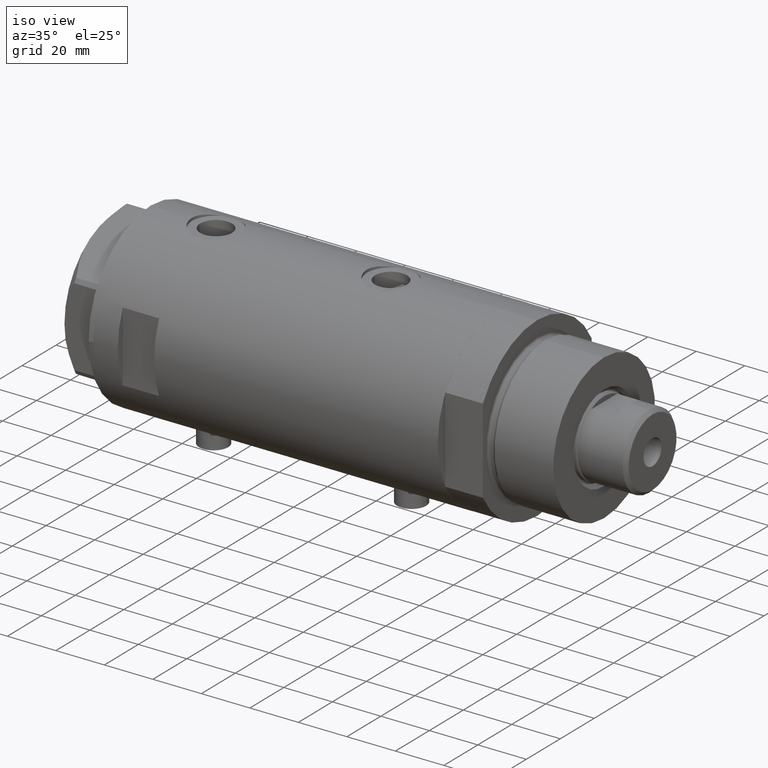
[diagram: clean part render]
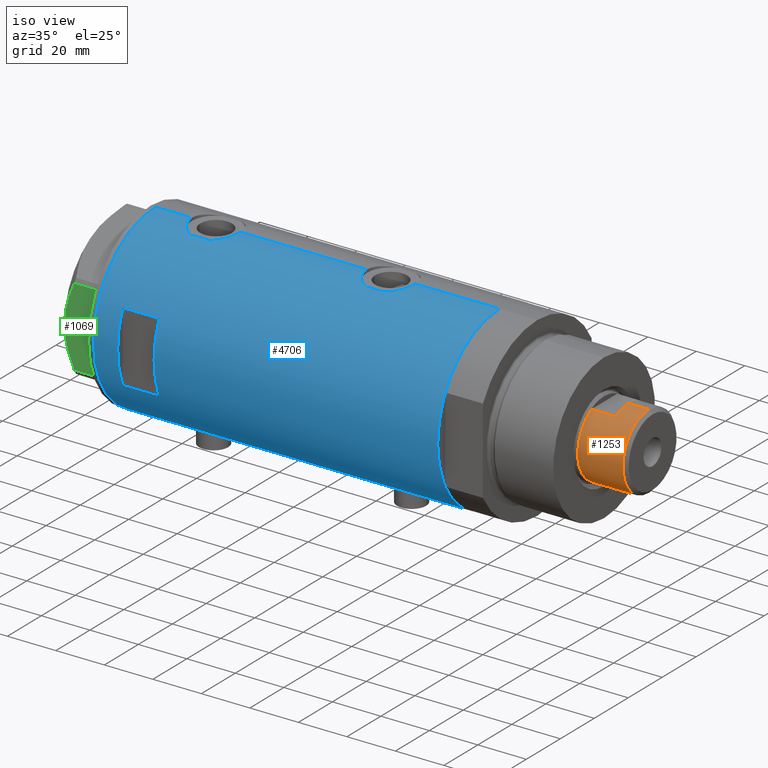
[diagram: same view with three faces highlighted in distinct colors, each labeled with its STEP entity id]
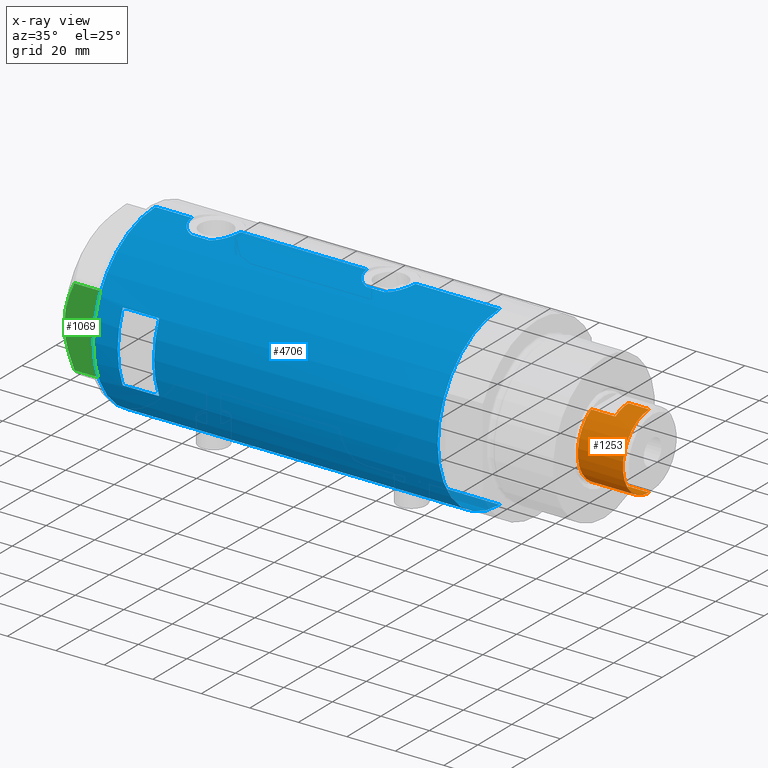
[diagram: x-ray of the same camera — body ghosted, the three highlighted faces saturated]
A machine part, iso view with three faces highlighted in distinct colors.
The next image is the same camera in x-ray (body ghosted, the three faces saturated) — at least one of them is partly hidden behind the body in this view.
Their STEP definitions:

[orange] entity #1253 — the highlighted cylindrical surface (partial cylindrical patch) has radius 15.5 mm, axis along (-1, -0, 0).
#62 = DIRECTION ( 'NONE',  ( 1.000000000000000000, 0.000000000000000000, 0.000000000000000000 ) ) ;
#89 = DIRECTION ( 'NONE',  ( 0.000000000000000000, 0.000000000000000000, 1.000000000000000000 ) ) ;
#96 = EDGE_CURVE ( 'NONE', #2573, #730, #236, .T. ) ;
#131 = ORIENTED_EDGE ( 'NONE', *, *, #330, .F. ) ;
#148 = FACE_OUTER_BOUND ( 'NONE', #2046, .T. ) ;
#227 = CARTESIAN_POINT ( 'NONE',  ( -13.48630416385452691, -7.640000000000001457, 169.0200000000000102 ) ) ;
#236 = LINE ( 'NONE', #801, #3142 ) ;
#330 = EDGE_CURVE ( 'NONE', #1028, #2474, #2692, .T. ) ;
#418 = DIRECTION ( 'NONE',  ( -0.000000000000000000, -0.000000000000000000, -1.000000000000000000 ) ) ;
#443 = EDGE_CURVE ( 'NONE', #4495, #3495, #2192, .T. ) ;
#484 = DIRECTION ( 'NONE',  ( 0.000000000000000000, 0.000000000000000000, 1.000000000000000000 ) ) ;
#534 = CARTESIAN_POINT ( 'NONE',  ( 0.000000000000000000, 0.000000000000000000, 159.0199999999999818 ) ) ;
#579 = CYLINDRICAL_SURFACE ( 'NONE', #4241, 15.49999999999999822 ) ;
#674 = VECTOR ( 'NONE', #3893, 1000.000000000000000 ) ;
#679 = AXIS2_PLACEMENT_3D ( 'NONE', #4507, #89, #1199 ) ;
#730 = VERTEX_POINT ( 'NONE', #2981 ) ;
#801 = CARTESIAN_POINT ( 'NONE',  ( -15.49999999999999822, 0.000000000000000000, 169.0200000000000102 ) ) ;
#835 = CIRCLE ( 'NONE', #3850, 15.49999999999999822 ) ;
#1028 = VERTEX_POINT ( 'NONE', #2110 ) ;
#1043 = DIRECTION ( 'NONE',  ( 0.000000000000000000, 0.000000000000000000, 1.000000000000000000 ) ) ;
#1172 = CARTESIAN_POINT ( 'NONE',  ( 15.50000000000000178, 1.898202538678397557E-15, 169.0200000000000102 ) ) ;
#1199 = DIRECTION ( 'NONE',  ( 1.000000000000000000, 0.000000000000000000, 0.000000000000000000 ) ) ;
#1206 = AXIS2_PLACEMENT_3D ( 'NONE', #534, #484, #3408 ) ;
#1253 = ADVANCED_FACE ( 'NONE', ( #148 ), #579, .T. ) ;
#1317 = CARTESIAN_POINT ( 'NONE',  ( 15.49999999999999822, 1.898202538678397163E-15, 177.6200000000000045 ) ) ;
#1359 = VERTEX_POINT ( 'NONE', #2856 ) ;
#1430 = CARTESIAN_POINT ( 'NONE',  ( 0.000000000000000000, 0.000000000000000000, 169.0200000000000102 ) ) ;
#1613 = ORIENTED_EDGE ( 'NONE', *, *, #2211, .T. ) ;
#1701 = CARTESIAN_POINT ( 'NONE',  ( 15.49999999999999822, 1.898202538678397163E-15, 169.0200000000000102 ) ) ;
#1960 = CARTESIAN_POINT ( 'NONE',  ( 13.48630416385453046, -7.639999999999995239, 169.0200000000000102 ) ) ;
#2032 = DIRECTION ( 'NONE',  ( -0.000000000000000000, -0.000000000000000000, -1.000000000000000000 ) ) ;
#2046 = EDGE_LOOP ( 'NONE', ( #3263, #2893, #2382, #4098, #4716, #4320, #131, #1613 ) ) ;
#2110 = CARTESIAN_POINT ( 'NONE',  ( 13.48630416385453046, -7.639999999999995239, 169.0200000000000102 ) ) ;
#2192 = LINE ( 'NONE', #1701, #674 ) ;
#2211 = EDGE_CURVE ( 'NONE', #1028, #3495, #4087, .T. ) ;
#2257 = DIRECTION ( 'NONE',  ( 0.000000000000000000, 0.000000000000000000, -1.000000000000000000 ) ) ;
#2320 = CARTESIAN_POINT ( 'NONE',  ( 13.48630416385452868, -7.639999999999997904, 159.0199999999999818 ) ) ;
#2358 = CARTESIAN_POINT ( 'NONE',  ( -13.48630416385452335, -7.640000000000004121, 159.0199999999999818 ) ) ;
#2361 = DIRECTION ( 'NONE',  ( -1.000000000000000000, 0.000000000000000000, 0.000000000000000000 ) ) ;
#2382 = ORIENTED_EDGE ( 'NONE', *, *, #96, .T. ) ;
#2464 = CARTESIAN_POINT ( 'NONE',  ( -15.49999999999999822, 0.000000000000000000, 177.6200000000000045 ) ) ;
#2474 = VERTEX_POINT ( 'NONE', #2320 ) ;
#2573 = VERTEX_POINT ( 'NONE', #2464 ) ;
#2626 = CARTESIAN_POINT ( 'NONE',  ( 0.000000000000000000, 0.000000000000000000, 177.6200000000000045 ) ) ;
#2672 = CIRCLE ( 'NONE', #1206, 15.49999999999999822 ) ;
#2692 = LINE ( 'NONE', #1960, #3607 ) ;
#2781 = CARTESIAN_POINT ( 'NONE',  ( 0.000000000000000000, 0.000000000000000000, 169.0200000000000102 ) ) ;
#2856 = CARTESIAN_POINT ( 'NONE',  ( -13.48630416385452335, -7.640000000000004121, 169.0200000000000102 ) ) ;
#2893 = ORIENTED_EDGE ( 'NONE', *, *, #2987, .T. ) ;
#2905 = DIRECTION ( 'NONE',  ( 1.000000000000000000, 0.000000000000000000, 0.000000000000000000 ) ) ;
#2981 = CARTESIAN_POINT ( 'NONE',  ( -15.50000000000000178, 0.000000000000000000, 169.0200000000000102 ) ) ;
#2987 = EDGE_CURVE ( 'NONE', #4495, #2573, #835, .T. ) ;
#3018 = EDGE_CURVE ( 'NONE', #730, #1359, #3684, .T. ) ;
#3142 = VECTOR ( 'NONE', #418, 1000.000000000000000 ) ;
#3263 = ORIENTED_EDGE ( 'NONE', *, *, #443, .F. ) ;
#3408 = DIRECTION ( 'NONE',  ( 1.000000000000000000, 0.000000000000000000, 0.000000000000000000 ) ) ;
#3433 = DIRECTION ( 'NONE',  ( -0.000000000000000000, -0.000000000000000000, -1.000000000000000000 ) ) ;
#3495 = VERTEX_POINT ( 'NONE', #1172 ) ;
#3573 = EDGE_CURVE ( 'NONE', #1359, #3885, #4650, .T. ) ;
#3607 = VECTOR ( 'NONE', #3433, 1000.000000000000000 ) ;
#3684 = CIRCLE ( 'NONE', #679, 15.50000000000000000 ) ;
#3850 = AXIS2_PLACEMENT_3D ( 'NONE', #2626, #2257, #62 ) ;
#3885 = VERTEX_POINT ( 'NONE', #2358 ) ;
#3893 = DIRECTION ( 'NONE',  ( -0.000000000000000000, -0.000000000000000000, -1.000000000000000000 ) ) ;
#4087 = CIRCLE ( 'NONE', #4712, 15.50000000000000000 ) ;
#4098 = ORIENTED_EDGE ( 'NONE', *, *, #3018, .T. ) ;
#4153 = VECTOR ( 'NONE', #2032, 1000.000000000000000 ) ;
#4241 = AXIS2_PLACEMENT_3D ( 'NONE', #2781, #4549, #2361 ) ;
#4320 = ORIENTED_EDGE ( 'NONE', *, *, #4483, .T. ) ;
#4483 = EDGE_CURVE ( 'NONE', #3885, #2474, #2672, .T. ) ;
#4495 = VERTEX_POINT ( 'NONE', #1317 ) ;
#4507 = CARTESIAN_POINT ( 'NONE',  ( 0.000000000000000000, 0.000000000000000000, 169.0200000000000102 ) ) ;
#4549 = DIRECTION ( 'NONE',  ( -0.000000000000000000, -0.000000000000000000, -1.000000000000000000 ) ) ;
#4650 = LINE ( 'NONE', #227, #4153 ) ;
#4712 = AXIS2_PLACEMENT_3D ( 'NONE', #1430, #1043, #2905 ) ;
#4716 = ORIENTED_EDGE ( 'NONE', *, *, #3573, .T. ) ;

[blue] entity #4706 — the highlighted cylindrical surface (partial cylindrical patch) has radius 36.5 mm, axis along (-1, -0, 0).
#4 = LINE ( 'NONE', #3319, #3517 ) ;
#40 = VERTEX_POINT ( 'NONE', #2114 ) ;
#65 = EDGE_CURVE ( 'NONE', #2851, #4598, #1113, .T. ) ;
#95 = DIRECTION ( 'NONE',  ( 1.000000000000000000, 0.000000000000000000, 0.000000000000000000 ) ) ;
#120 = EDGE_CURVE ( 'NONE', #3703, #892, #2663, .T. ) ;
#123 = CARTESIAN_POINT ( 'NONE',  ( 36.50000000000000000, -0.5031001875915698252, 35.97499999999998721 ) ) ;
#143 = VECTOR ( 'NONE', #3879, 1000.000000000000000 ) ;
#149 = CARTESIAN_POINT ( 'NONE',  ( 36.12792682573228120, -5.214735277442337669, 37.42806882011300473 ) ) ;
#169 = CARTESIAN_POINT ( 'NONE',  ( -36.35061318816141096, -3.303361544904983571, 41.66535958056980604 ) ) ;
#222 = CARTESIAN_POINT ( 'NONE',  ( -35.99659093586380010, -6.041447834568794306, 48.58922412014823777 ) ) ;
#255 = CARTESIAN_POINT ( 'NONE',  ( -35.96087392089862078, -6.250243747806516481, -34.26582509223818818 ) ) ;
#266 = CARTESIAN_POINT ( 'NONE',  ( -36.06543684817881257, -5.617774235967365470, 49.74454447971701399 ) ) ;
#271 = EDGE_CURVE ( 'NONE', #959, #812, #3155, .T. ) ;
#303 = VECTOR ( 'NONE', #2077, 1000.000000000000000 ) ;
#306 = CARTESIAN_POINT ( 'NONE',  ( -36.47262891311154220, -1.427622242603850955, -28.58675370788299475 ) ) ;
#313 = ORIENTED_EDGE ( 'NONE', *, *, #1690, .F. ) ;
#317 = CARTESIAN_POINT ( 'NONE',  ( -36.16125812922425098, -4.962923794285014623, 50.77946085910760843 ) ) ;
#326 = CARTESIAN_POINT ( 'NONE',  ( -36.35061318816141096, -3.303361544904982239, -39.98464041943017833 ) ) ;
#339 = DIRECTION ( 'NONE',  ( 0.000000000000000000, 0.000000000000000000, 1.000000000000000000 ) ) ;
#441 = DIRECTION ( 'NONE',  ( 0.000000000000000000, 0.000000000000000000, 1.000000000000000000 ) ) ;
#486 = CARTESIAN_POINT ( 'NONE',  ( 36.41856252531823657, -2.482507212621167358, 36.27543487153494084 ) ) ;
#504 = CARTESIAN_POINT ( 'NONE',  ( -36.26692673949091272, -4.128477002029510956, 42.26500012567834830 ) ) ;
#533 = B_SPLINE_CURVE_WITH_KNOTS ( 'NONE', 3,
 ( #3030, #4500, #1192, #4133, #2730, #3121, #1241, #1286, #891, #149, #3846, #3889, #537, #486, #2008, #3869, #123, #1594 ),
 .UNSPECIFIED., .F., .F.,
 ( 4, 2, 2, 2, 2, 2, 2, 2, 4 ),
 ( -0.01189883390545606184, -0.008924125429092075873, -0.008180448310001064635, -0.007436771190910053397, -0.005949416952728041330, -0.004462062714546030130, -0.002974708476364018930, -0.001487354238182008598, 0.000000000000000000 ),
 .UNSPECIFIED. ) ;
#536 = CARTESIAN_POINT ( 'NONE',  ( -36.40915499150419521, -2.580495338846552134, 41.27894986644522390 ) ) ;
#537 = CARTESIAN_POINT ( 'NONE',  ( 36.34184199234172041, -3.427106516421254412, 36.56759086319966201 ) ) ;
#554 = VERTEX_POINT ( 'NONE', #4033 ) ;
#557 = CARTESIAN_POINT ( 'NONE',  ( -36.30176144752229561, -3.814344296723639172, 42.00698298049744039 ) ) ;
#559 = VERTEX_POINT ( 'NONE', #4699 ) ;
#577 = CARTESIAN_POINT ( 'NONE',  ( 36.44881677724180236, -1.995085670027225255, -35.98680345369464106 ) ) ;
#604 = CARTESIAN_POINT ( 'NONE',  ( 36.12792682573229541, -5.214735277442338557, -34.72193117988700806 ) ) ;
#607 = CARTESIAN_POINT ( 'NONE',  ( -36.43335814606994205, -2.212659578761315693, 52.82376399169508829 ) ) ;
#619 = CARTESIAN_POINT ( 'NONE',  ( -36.50000000000000000, 4.469960816887838430E-15, -70.97499999999999432 ) ) ;
#621 = CARTESIAN_POINT ( 'NONE',  ( -35.98855750525640218, -6.088954600884529889, -36.09930226150164145 ) ) ;
#643 = CARTESIAN_POINT ( 'NONE',  ( -36.19599073318029525, -4.702920041824404151, -30.55346168323421097 ) ) ;
#663 = CARTESIAN_POINT ( 'NONE',  ( -36.30107494031871340, -3.820993528321237065, -29.71193846463692978 ) ) ;
#678 = CARTESIAN_POINT ( 'NONE',  ( 35.93373217836898448, -6.415110096330612244, -18.48795733644907102 ) ) ;
#689 = CARTESIAN_POINT ( 'NONE',  ( -36.09582946723050867, -5.421573071064194949, -37.81108278370489018 ) ) ;
#700 = CARTESIAN_POINT ( 'NONE',  ( 35.79638309643552674, -7.141827709208428132, 52.99201926969546861 ) ) ;
#701 = LINE ( 'NONE', #3341, #828 ) ;
#708 = CARTESIAN_POINT ( 'NONE',  ( -36.50000000000000000, -1.177086652845314172E-16, -28.42499999999999716 ) ) ;
#724 = CARTESIAN_POINT ( 'NONE',  ( 35.29999999999999716, -9.282241108697837362, 42.25478495245234711 ) ) ;
#744 = CARTESIAN_POINT ( 'NONE',  ( 36.18674680775578167, -4.776679548204624481, -17.38607683068752152 ) ) ;
#751 = CIRCLE ( 'NONE', #3451, 36.50000000000000000 ) ;
#758 = AXIS2_PLACEMENT_3D ( 'NONE', #1933, #3405, #95 ) ;
#788 = ORIENTED_EDGE ( 'NONE', *, *, #2329, .F. ) ;
#812 = VERTEX_POINT ( 'NONE', #1151 ) ;
#828 = VECTOR ( 'NONE', #339, 1000.000000000000000 ) ;
#865 = CARTESIAN_POINT ( 'NONE',  ( -36.46614432713121801, -1.622933015999965756, 40.92533402613152305 ) ) ;
#890 = CARTESIAN_POINT ( 'NONE',  ( -36.44621655743048905, -2.016281777336083270, 41.04517023300883949 ) ) ;
#891 = CARTESIAN_POINT ( 'NONE',  ( 36.00068527486602221, -6.030855700422095289, 37.98298672872645199 ) ) ;
#892 = VERTEX_POINT ( 'NONE', #897 ) ;
#897 = CARTESIAN_POINT ( 'NONE',  ( -36.50000000000000000, 4.469960816887838430E-15, 70.97499999999999432 ) ) ;
#917 = CARTESIAN_POINT ( 'NONE',  ( 35.79656810172927806, -7.133411935499478496, -33.18754878557678722 ) ) ;
#942 = CARTESIAN_POINT ( 'NONE',  ( -35.98855750525640929, -6.088954600884532553, 45.55069773849835002 ) ) ;
#946 = CARTESIAN_POINT ( 'NONE',  ( 36.50000000000000000, 0.000000000000000000, -36.17499999999999716 ) ) ;
#949 = LINE ( 'NONE', #2417, #2765 ) ;
#959 = VERTEX_POINT ( 'NONE', #2345 ) ;
#976 = EDGE_CURVE ( 'NONE', #1563, #3116, #949, .T. ) ;
#992 = CARTESIAN_POINT ( 'NONE',  ( -36.50000000000000000, 3.533701851025436616E-16, 53.22499999999999432 ) ) ;
#1004 = CARTESIAN_POINT ( 'NONE',  ( -36.16125812922425098, -4.962923794285026169, -30.87053914089240436 ) ) ;
#1013 = CARTESIAN_POINT ( 'NONE',  ( 36.00068527486600800, -6.030855700422092625, -34.16701327127353949 ) ) ;
#1025 = CARTESIAN_POINT ( 'NONE',  ( -36.49315367594274306, -0.8144497809045454506, -40.88539785554750949 ) ) ;
#1046 = CARTESIAN_POINT ( 'NONE',  ( -36.02823773219769521, -5.849994928883553769, -36.88455101485643439 ) ) ;
#1089 = CARTESIAN_POINT ( 'NONE',  ( 35.29999999999999716, -9.282241108697837362, 49.69521504754764152 ) ) ;
#1111 = CARTESIAN_POINT ( 'NONE',  ( 36.21540437201188922, -4.554727782332257391, 54.88097629088627372 ) ) ;
#1112 = CARTESIAN_POINT ( 'NONE',  ( 36.44931971524466263, -1.985988150549292452, -16.36133139468235242 ) ) ;
#1113 = B_SPLINE_CURVE_WITH_KNOTS ( 'NONE', 3,
 ( #4290, #2498, #1025, #4000, #1705, #1395, #2445, #4023, #326, #1749, #2093, #2839, #2909, #689, #4708, #1046, #3929, #3974, #621, #3185, #3563, #255, #2164, #1726, #1794, #3609, #3207, #4677, #4318, #2473, #1004, #643, #2884, #2866, #663, #1433, #2138, #2520, #3274, #3255, #306, #1777, #4729, #708 ),
 .UNSPECIFIED., .F., .F.,
 ( 4, 2, 2, 2, 2, 2, 2, 2, 2, 2, 2, 2, 2, 2, 2, 2, 2, 2, 2, 2, 2, 4 ),
 ( 0.01957644481942641401, 0.02079966591703045348, 0.02202288701463449641, 0.02263449756343651267, 0.02324610811223852894, 0.02446932920984256146, 0.02569255030744659399, 0.02691577140505062998, 0.02752738195385263931, 0.02813899250265464863, 0.02936221360025868116, 0.03058543469786272062, 0.03119704524666473688, 0.03180865579546675315, 0.03303187689307077179, 0.03364348744187277418, 0.03425509799067477656, 0.03547831908827879521, 0.03670154018588279998, 0.03731315073468480237, 0.03792476128348681169, 0.03914798238109081646 ),
 .UNSPECIFIED. ) ;
#1139 = CARTESIAN_POINT ( 'NONE',  ( 35.52323553852025384, -8.411295122831239368, -20.67747607048909586 ) ) ;
#1151 = CARTESIAN_POINT ( 'NONE',  ( -14.49137674618942739, -33.50000000000000000, 45.97499999999998721 ) ) ;
#1192 = CARTESIAN_POINT ( 'NONE',  ( 35.52320828895290106, -8.411622242316138198, 40.47727134055386955 ) ) ;
#1205 = ORIENTED_EDGE ( 'NONE', *, *, #3895, .T. ) ;
#1241 = CARTESIAN_POINT ( 'NONE',  ( 35.83108131285855791, -6.958268797611352419, 38.78869216627172989 ) ) ;
#1271 = CARTESIAN_POINT ( 'NONE',  ( 14.49137674618942739, -33.50000000000000000, 60.97499999999998721 ) ) ;
#1285 = CARTESIAN_POINT ( 'NONE',  ( -36.01675918113429731, -5.920026275461283127, 44.96060443482111424 ) ) ;
#1286 = CARTESIAN_POINT ( 'NONE',  ( 35.93363298843767950, -6.415574104180970849, 38.28848527111106392 ) ) ;
#1314 = CARTESIAN_POINT ( 'NONE',  ( 35.29999999999999716, -9.282241108697837362, -29.89521504754764436 ) ) ;
#1319 = CARTESIAN_POINT ( 'NONE',  ( -35.96095902952616541, -6.249754054240899137, 46.55841234579527566 ) ) ;
#1336 = EDGE_CURVE ( 'NONE', #40, #3703, #1576, .T. ) ;
#1339 = CARTESIAN_POINT ( 'NONE',  ( -36.14410773716529235, -5.085921866747740161, 50.61335878420472056 ) ) ;
#1355 = CARTESIAN_POINT ( 'NONE',  ( 36.48960339336946390, -1.002724032967599488, -36.13724865973497202 ) ) ;
#1357 = CARTESIAN_POINT ( 'NONE',  ( -36.39621039793030377, -2.776267550998796629, 52.58930753106778155 ) ) ;
#1381 = CARTESIAN_POINT ( 'NONE',  ( 36.34184199234171331, -3.427106516421254412, -35.58240913680032946 ) ) ;
#1382 = CARTESIAN_POINT ( 'NONE',  ( -36.50000000000000000, -1.177086652845314172E-16, -28.42499999999999716 ) ) ;
#1395 = CARTESIAN_POINT ( 'NONE',  ( -36.40915499150419521, -2.580495338846551689, -40.37105013355476046 ) ) ;
#1404 = CARTESIAN_POINT ( 'NONE',  ( -36.50000000000000711, -0.4136690418839307215, 53.22499999999998721 ) ) ;
#1426 = CARTESIAN_POINT ( 'NONE',  ( 35.52323553852025384, -8.411295122831244697, 51.47252392951086364 ) ) ;
#1433 = CARTESIAN_POINT ( 'NONE',  ( -36.36656776002988778, -3.137002187003169240, -29.25363590726368557 ) ) ;
#1452 = CARTESIAN_POINT ( 'NONE',  ( 36.41918031349424467, -2.473644131148923897, 55.67688345463191268 ) ) ;
#1454 = CARTESIAN_POINT ( 'NONE',  ( 36.41918031349424467, -2.473644131148924341, -16.47311654536808234 ) ) ;
#1504 = DIRECTION ( 'NONE',  ( 0.000000000000000000, 0.000000000000000000, 1.000000000000000000 ) ) ;
#1510 = VERTEX_POINT ( 'NONE', #2925 ) ;
#1554 = CARTESIAN_POINT ( 'NONE',  ( 0.000000000000000000, 0.000000000000000000, 45.97499999999998721 ) ) ;
#1563 = VERTEX_POINT ( 'NONE', #4158 ) ;
#1576 = B_SPLINE_CURVE_WITH_KNOTS ( 'NONE', 3,
 ( #3844, #2709, #2007, #865, #890, #536, #3813, #3479, #169, #557, #504, #1644, #1980, #3120, #3145, #4590, #1285, #2028, #942, #4619, #1319, #2411, #3888, #2875, #222, #4372, #2821, #266, #3984, #1339, #317, #3592, #3195, #4278, #4303, #2463, #1357, #607, #4352, #3215, #1734, #4690, #1404, #992 ),
 .UNSPECIFIED., .F., .F.,
 ( 4, 2, 2, 2, 2, 2, 2, 2, 2, 2, 2, 2, 2, 2, 2, 2, 2, 2, 2, 2, 2, 4 ),
 ( 0.01957644481942642095, 0.02079966591703046735, 0.02202288701463451029, 0.02263449756343653002, 0.02324610811223854628, 0.02446932920984258575, 0.02569255030744662174, 0.02691577140505065774, 0.02752738195385266706, 0.02813899250265467639, 0.02936221360025871585, 0.03058543469786275532, 0.03119704524666477505, 0.03180865579546679478, 0.03303187689307081343, 0.03364348744187281581, 0.03425509799067481820, 0.03547831908827882297, 0.03670154018588282774, 0.03731315073468483012, 0.03792476128348683251, 0.03914798238109083034 ),
 .UNSPECIFIED. ) ;
#1594 = CARTESIAN_POINT ( 'NONE',  ( 36.50000000000000000, 0.000000000000000000, 35.97499999999999432 ) ) ;
#1601 = VECTOR ( 'NONE', #3506, 1000.000000000000000 ) ;
#1644 = CARTESIAN_POINT ( 'NONE',  ( -36.19666146462958523, -4.704890678739102050, 42.84070140489217238 ) ) ;
#1690 = EDGE_CURVE ( 'NONE', #3116, #959, #2849, .T. ) ;
#1705 = CARTESIAN_POINT ( 'NONE',  ( -36.44621655743049615, -2.016281777336082826, -40.60482976699114488 ) ) ;
#1714 = EDGE_CURVE ( 'NONE', #559, #2720, #3329, .T. ) ;
#1726 = CARTESIAN_POINT ( 'NONE',  ( -35.98821803976955636, -6.090959022952115554, -33.25926116850581593 ) ) ;
#1730 = VERTEX_POINT ( 'NONE', #3548 ) ;
#1734 = CARTESIAN_POINT ( 'NONE',  ( -36.47262891311153510, -1.427622242603851177, 53.06324629211700739 ) ) ;
#1749 = CARTESIAN_POINT ( 'NONE',  ( -36.30176144752228851, -3.814344296723636507, -39.64301701950254397 ) ) ;
#1777 = CARTESIAN_POINT ( 'NONE',  ( -36.49297138689433240, -0.8222528563518460842, -28.46566887946565316 ) ) ;
#1794 = CARTESIAN_POINT ( 'NONE',  ( -35.99659093586380010, -6.041447834568797859, -33.06077587985177502 ) ) ;
#1808 = CARTESIAN_POINT ( 'NONE',  ( 36.50000000000000000, 4.344610667173140696E-19, 55.97499999999999432 ) ) ;
#1809 = DIRECTION ( 'NONE',  ( 0.000000000000000000, 0.000000000000000000, 1.000000000000000000 ) ) ;
#1813 = CARTESIAN_POINT ( 'NONE',  ( 0.000000000000000000, 0.000000000000000000, -70.97499999999999432 ) ) ;
#1835 = CARTESIAN_POINT ( 'NONE',  ( 35.72583162417570435, -7.484316398521976055, 52.62542643719500290 ) ) ;
#1843 = AXIS2_PLACEMENT_3D ( 'NONE', #1813, #1885, #4447 ) ;
#1885 = DIRECTION ( 'NONE',  ( 0.000000000000000000, 0.000000000000000000, 1.000000000000000000 ) ) ;
#1887 = CARTESIAN_POINT ( 'NONE',  ( -36.50000000000000000, 4.469960816887838430E-15, -70.97499999999999432 ) ) ;
#1933 = CARTESIAN_POINT ( 'NONE',  ( 0.000000000000000000, 0.000000000000000000, 60.97499999999998721 ) ) ;
#1980 = CARTESIAN_POINT ( 'NONE',  ( -36.16096637594731789, -4.968588355849260729, 43.16165507182241612 ) ) ;
#1993 = ORIENTED_EDGE ( 'NONE', *, *, #2694, .F. ) ;
#2007 = CARTESIAN_POINT ( 'NONE',  ( -36.49315367594273596, -0.8144497809045476711, 40.76460214445248198 ) ) ;
#2008 = CARTESIAN_POINT ( 'NONE',  ( 36.44881677724179525, -1.995085670027224811, 36.16319654630536462 ) ) ;
#2010 = ORIENTED_EDGE ( 'NONE', *, *, #976, .F. ) ;
#2028 = CARTESIAN_POINT ( 'NONE',  ( -35.99695583620881223, -6.039273428153909329, 45.35275555012245263 ) ) ;
#2071 = ORIENTED_EDGE ( 'NONE', *, *, #271, .F. ) ;
#2077 = DIRECTION ( 'NONE',  ( 0.000000000000000000, 0.000000000000000000, 1.000000000000000000 ) ) ;
#2093 = CARTESIAN_POINT ( 'NONE',  ( -36.26692673949090562, -4.128477002029512732, -39.38499987432165739 ) ) ;
#2101 = CARTESIAN_POINT ( 'NONE',  ( 35.69273631926343882, -7.635692914629143679, -32.63700195651490787 ) ) ;
#2114 = CARTESIAN_POINT ( 'NONE',  ( -36.50000000000000000, 4.469960493369248271E-15, 40.72499999999999432 ) ) ;
#2124 = FACE_OUTER_BOUND ( 'NONE', #2651, .T. ) ;
#2138 = CARTESIAN_POINT ( 'NONE',  ( -36.39621039793028956, -2.776267550998807287, -29.06069246893223124 ) ) ;
#2140 = ORIENTED_EDGE ( 'NONE', *, *, #3198, .F. ) ;
#2156 = CARTESIAN_POINT ( 'NONE',  ( 35.29999999999999716, -9.282241108697837362, -22.45478495245234640 ) ) ;
#2164 = CARTESIAN_POINT ( 'NONE',  ( -35.96794010939611752, -6.209972807992078181, -33.85944451008645473 ) ) ;
#2176 = CARTESIAN_POINT ( 'NONE',  ( 36.50000000000000000, 4.344611676915099379E-19, -16.17499999999999361 ) ) ;
#2208 = VERTEX_POINT ( 'NONE', #724 ) ;
#2296 = CARTESIAN_POINT ( 'NONE',  ( 36.50000000000000000, 0.000000000000000000, -70.97499999999999432 ) ) ;
#2302 = EDGE_CURVE ( 'NONE', #812, #1563, #751, .T. ) ;
#2329 = EDGE_CURVE ( 'NONE', #2208, #2720, #533, .T. ) ;
#2345 = CARTESIAN_POINT ( 'NONE',  ( -14.49137674618942739, -33.50000000000000000, 60.97499999999998721 ) ) ;
#2409 = CARTESIAN_POINT ( 'NONE',  ( 35.72742963626382107, -7.471989379615406435, -32.82562260412775856 ) ) ;
#2411 = CARTESIAN_POINT ( 'NONE',  ( -35.96087392089862789, -6.250243747806516481, 47.38417490776182461 ) ) ;
#2417 = CARTESIAN_POINT ( 'NONE',  ( 14.49137674618942739, -33.50000000000000000, -70.97499999999999432 ) ) ;
#2445 = CARTESIAN_POINT ( 'NONE',  ( -36.39558535855674393, -2.764807686267999554, -40.28394118545610070 ) ) ;
#2452 = EDGE_CURVE ( 'NONE', #892, #1510, #4539, .T. ) ;
#2463 = CARTESIAN_POINT ( 'NONE',  ( -36.36656776002989488, -3.137002187003161691, 52.39636409273630591 ) ) ;
#2473 = CARTESIAN_POINT ( 'NONE',  ( -36.14410773716529235, -5.085921866747743714, -31.03664121579529933 ) ) ;
#2490 = CARTESIAN_POINT ( 'NONE',  ( 36.44931971524466263, -1.985988150549292452, 55.78866860531763905 ) ) ;
#2498 = CARTESIAN_POINT ( 'NONE',  ( -36.49999999999999289, -0.4082012689449552312, -40.92499999999999716 ) ) ;
#2504 = ORIENTED_EDGE ( 'NONE', *, *, #3714, .T. ) ;
#2520 = CARTESIAN_POINT ( 'NONE',  ( -36.43335814606994205, -2.212659578761325907, -28.82623600830491739 ) ) ;
#2540 = CARTESIAN_POINT ( 'NONE',  ( 36.18674680775578878, -4.776679548204622705, 54.76392316931246995 ) ) ;
#2558 = EDGE_LOOP ( 'NONE', ( #2625, #2071, #313, #2010 ) ) ;
#2567 = CARTESIAN_POINT ( 'NONE',  ( 35.29999999999999716, -9.282241108697837362, -70.97499999999999432 ) ) ;
#2583 = CARTESIAN_POINT ( 'NONE',  ( 35.39807338191550201, -8.909271871950327437, -21.52419617267213070 ) ) ;
#2602 = ORIENTED_EDGE ( 'NONE', *, *, #3782, .F. ) ;
#2625 = ORIENTED_EDGE ( 'NONE', *, *, #2302, .F. ) ;
#2650 = VERTEX_POINT ( 'NONE', #4722 ) ;
#2651 = EDGE_LOOP ( 'NONE', ( #3187, #4144, #4679, #3821, #1205, #2602, #3284, #788, #4198, #1993, #2504, #3309, #4252, #4667, #2140, #3354 ) ) ;
#2663 = LINE ( 'NONE', #1887, #3296 ) ;
#2667 = CARTESIAN_POINT ( 'NONE',  ( 36.50000000000000000, 0.000000000000000000, -70.97499999999999432 ) ) ;
#2694 = EDGE_CURVE ( 'NONE', #1730, #2650, #3987, .T. ) ;
#2703 = VERTEX_POINT ( 'NONE', #2772 ) ;
#2709 = CARTESIAN_POINT ( 'NONE',  ( -36.50000000000000000, -0.4082012689449582843, 40.72500000000000142 ) ) ;
#2720 = VERTEX_POINT ( 'NONE', #3496 ) ;
#2730 = CARTESIAN_POINT ( 'NONE',  ( 35.72742963626382107, -7.471989379615407323, 39.32437739587224712 ) ) ;
#2765 = VECTOR ( 'NONE', #3181, 1000.000000000000000 ) ;
#2772 = CARTESIAN_POINT ( 'NONE',  ( 35.29999999999999716, -9.282241108697837362, -29.89521504754764436 ) ) ;
#2797 = B_SPLINE_CURVE_WITH_KNOTS ( 'NONE', 3,
 ( #1314, #4588, #3909, #2101, #2409, #917, #3940, #3213, #1013, #604, #4686, #4233, #1381, #4300, #577, #1355, #3866, #2798 ),
 .UNSPECIFIED., .F., .F.,
 ( 4, 2, 2, 2, 2, 2, 2, 2, 4 ),
 ( -0.01189883390545605490, -0.008924125429092067199, -0.008180448310001057696, -0.007436771190910046458, -0.005949416952728036993, -0.004462062714546028395, -0.002974708476364020665, -0.001487354238182012067, -3.469446951953614189E-18 ),
 .UNSPECIFIED. ) ;
#2798 = CARTESIAN_POINT ( 'NONE',  ( 36.50000000000000000, 0.000000000000000000, -36.17499999999999716 ) ) ;
#2821 = CARTESIAN_POINT ( 'NONE',  ( -36.02782481185205654, -5.852531070448505623, 49.17777008952188567 ) ) ;
#2839 = CARTESIAN_POINT ( 'NONE',  ( -36.19666146462960654, -4.704890678739103826, -38.80929859510782620 ) ) ;
#2849 = CIRCLE ( 'NONE', #758, 36.50000000000000000 ) ;
#2851 = VERTEX_POINT ( 'NONE', #3652 ) ;
#2866 = CARTESIAN_POINT ( 'NONE',  ( -36.26616882068471881, -4.135065845178869104, -29.97084944059905354 ) ) ;
#2874 = CARTESIAN_POINT ( 'NONE',  ( 0.000000000000000000, 0.000000000000000000, -70.97499999999999432 ) ) ;
#2875 = CARTESIAN_POINT ( 'NONE',  ( -35.98821803976954925, -6.090959022952113777, 48.39073883149418265 ) ) ;
#2877 = CARTESIAN_POINT ( 'NONE',  ( 36.12724769814494863, -5.207618053557749427, 54.51564120488463772 ) ) ;
#2884 = CARTESIAN_POINT ( 'NONE',  ( -36.21356728133255132, -4.566014386638765465, -30.40237339235252989 ) ) ;
#2909 = CARTESIAN_POINT ( 'NONE',  ( -36.16096637594732499, -4.968588355849258065, -38.48834492817757535 ) ) ;
#2925 = CARTESIAN_POINT ( 'NONE',  ( 36.50000000000000000, 0.000000000000000000, 70.97499999999999432 ) ) ;
#2928 = CARTESIAN_POINT ( 'NONE',  ( 35.39807338191549491, -8.909271871950329214, 50.62580382732785722 ) ) ;
#2929 = CARTESIAN_POINT ( 'NONE',  ( 36.12724769814494863, -5.207618053557752091, -17.63435879511535020 ) ) ;
#2949 = CARTESIAN_POINT ( 'NONE',  ( 36.48988302519020976, -0.9927202255321152524, 55.93826989411301298 ) ) ;
#2952 = DIRECTION ( 'NONE',  ( 0.000000000000000000, 0.000000000000000000, 1.000000000000000000 ) ) ;
#3001 = VECTOR ( 'NONE', #4530, 1000.000000000000000 ) ;
#3030 = CARTESIAN_POINT ( 'NONE',  ( 35.29999999999999716, -9.282241108697837362, 42.25478495245234711 ) ) ;
#3077 = EDGE_CURVE ( 'NONE', #3465, #3587, #4145, .T. ) ;
#3098 = CARTESIAN_POINT ( 'NONE',  ( 0.000000000000000000, 0.000000000000000000, 70.97499999999999432 ) ) ;
#3116 = VERTEX_POINT ( 'NONE', #1271 ) ;
#3120 = CARTESIAN_POINT ( 'NONE',  ( -36.09582946723050867, -5.421573071064198501, 43.83891721629512261 ) ) ;
#3121 = CARTESIAN_POINT ( 'NONE',  ( 35.79656810172927806, -7.133411935499478496, 38.96245121442323267 ) ) ;
#3145 = CARTESIAN_POINT ( 'NONE',  ( -36.06605150775667568, -5.613853192123349878, 44.19734311727457055 ) ) ;
#3155 = LINE ( 'NONE', #3874, #1601 ) ;
#3181 = DIRECTION ( 'NONE',  ( 0.000000000000000000, 0.000000000000000000, 1.000000000000000000 ) ) ;
#3185 = CARTESIAN_POINT ( 'NONE',  ( -35.96816095843704630, -6.208699946936199865, -35.49996377127784086 ) ) ;
#3187 = ORIENTED_EDGE ( 'NONE', *, *, #3746, .F. ) ;
#3195 = CARTESIAN_POINT ( 'NONE',  ( -36.21356728133255132, -4.566014386638762801, 51.24762660764746158 ) ) ;
#3198 = EDGE_CURVE ( 'NONE', #4598, #40, #3927, .T. ) ;
#3207 = CARTESIAN_POINT ( 'NONE',  ( -36.02782481185207075, -5.852531070448510064, -32.47222991047812712 ) ) ;
#3213 = CARTESIAN_POINT ( 'NONE',  ( 35.93363298843767950, -6.415574104180963744, -33.86151472888892044 ) ) ;
#3215 = CARTESIAN_POINT ( 'NONE',  ( -36.46417279006303858, -1.628689148039111245, 53.01253938693817958 ) ) ;
#3243 = FACE_BOUND ( 'NONE', #2558, .T. ) ;
#3255 = CARTESIAN_POINT ( 'NONE',  ( -36.46417279006303147, -1.628689148039108137, -28.63746061306182611 ) ) ;
#3268 = CARTESIAN_POINT ( 'NONE',  ( 36.21540437201189633, -4.554727782332258279, -17.26902370911374263 ) ) ;
#3274 = CARTESIAN_POINT ( 'NONE',  ( -36.44454782745417276, -2.020757099930494238, -28.75714135579003283 ) ) ;
#3284 = ORIENTED_EDGE ( 'NONE', *, *, #1714, .T. ) ;
#3290 = CARTESIAN_POINT ( 'NONE',  ( 36.34247810649306132, -3.420510937483959957, -16.76513481598271582 ) ) ;
#3296 = VECTOR ( 'NONE', #441, 1000.000000000000000 ) ;
#3299 = AXIS2_PLACEMENT_3D ( 'NONE', #2874, #4351, #3313 ) ;
#3309 = ORIENTED_EDGE ( 'NONE', *, *, #2452, .F. ) ;
#3313 = DIRECTION ( 'NONE',  ( 1.000000000000000000, 0.000000000000000000, 0.000000000000000000 ) ) ;
#3319 = CARTESIAN_POINT ( 'NONE',  ( -36.50000000000000000, 4.469960816887838430E-15, -70.97499999999999432 ) ) ;
#3321 = EDGE_CURVE ( 'NONE', #2208, #2650, #4747, .T. ) ;
#3329 = LINE ( 'NONE', #3884, #303 ) ;
#3341 = CARTESIAN_POINT ( 'NONE',  ( 36.50000000000000000, 0.000000000000000000, -70.97499999999999432 ) ) ;
#3354 = ORIENTED_EDGE ( 'NONE', *, *, #65, .F. ) ;
#3405 = DIRECTION ( 'NONE',  ( -0.000000000000000000, 0.000000000000000000, -1.000000000000000000 ) ) ;
#3425 = EDGE_CURVE ( 'NONE', #4077, #3465, #3930, .T. ) ;
#3427 = DIRECTION ( 'NONE',  ( 0.000000000000000000, 0.000000000000000000, 1.000000000000000000 ) ) ;
#3451 = AXIS2_PLACEMENT_3D ( 'NONE', #1554, #2952, #4424 ) ;
#3465 = VERTEX_POINT ( 'NONE', #2296 ) ;
#3479 = CARTESIAN_POINT ( 'NONE',  ( -36.36635911126388265, -3.125815113635435072, 41.55894399592094857 ) ) ;
#3496 = CARTESIAN_POINT ( 'NONE',  ( 36.50000000000000000, 0.000000000000000000, 35.97499999999999432 ) ) ;
#3499 = CARTESIAN_POINT ( 'NONE',  ( -36.50000000000000000, 4.469960816887838430E-15, -70.97499999999999432 ) ) ;
#3502 = DIRECTION ( 'NONE',  ( 1.000000000000000000, 0.000000000000000000, 0.000000000000000000 ) ) ;
#3506 = DIRECTION ( 'NONE',  ( -0.000000000000000000, -0.000000000000000000, -1.000000000000000000 ) ) ;
#3517 = VECTOR ( 'NONE', #1809, 1000.000000000000000 ) ;
#3548 = CARTESIAN_POINT ( 'NONE',  ( 36.50000000000000000, 4.344610667173140696E-19, 55.97499999999999432 ) ) ;
#3563 = CARTESIAN_POINT ( 'NONE',  ( -35.96095902952617251, -6.249754054240900025, -35.09158765420470161 ) ) ;
#3587 = VERTEX_POINT ( 'NONE', #946 ) ;
#3592 = CARTESIAN_POINT ( 'NONE',  ( -36.19599073318028815, -4.702920041824394382, 51.09653831676578761 ) ) ;
#3596 = CARTESIAN_POINT ( 'NONE',  ( 36.34247810649305421, -3.420510937483959513, 55.38486518401730052 ) ) ;
#3600 = B_SPLINE_CURVE_WITH_KNOTS ( 'NONE', 3,
 ( #2176, #4016, #3624, #1112, #1454, #3290, #4442, #3268, #744, #2929, #4403, #4355, #678, #4742, #3713, #1139, #2583, #2156 ),
 .UNSPECIFIED., .F., .F.,
 ( 4, 2, 2, 2, 2, 2, 2, 2, 4 ),
 ( 0.01190956515753144491, 0.01339852714138289706, 0.01488748912523434921, 0.01637645110908580309, 0.01712093210101152396, 0.01786541309293725177, 0.01935437507678869351, 0.02084333706064013525, 0.02382126102834300832 ),
 .UNSPECIFIED. ) ;
#3609 = CARTESIAN_POINT ( 'NONE',  ( -36.01639592019628111, -5.922235714778420146, -32.66703197573087181 ) ) ;
#3623 = CARTESIAN_POINT ( 'NONE',  ( 36.09633718678917802, -5.417295330713081114, 54.38414867345213821 ) ) ;
#3624 = CARTESIAN_POINT ( 'NONE',  ( 36.48988302519019555, -0.9927202255321152524, -16.21173010588697849 ) ) ;
#3652 = CARTESIAN_POINT ( 'NONE',  ( -36.50000000000000000, 4.469960493372403714E-15, -40.92500000000000426 ) ) ;
#3678 = AXIS2_PLACEMENT_3D ( 'NONE', #3098, #4572, #3502 ) ;
#3694 = CARTESIAN_POINT ( 'NONE',  ( 36.00092304812867638, -6.029438422680415854, 53.96808155573651078 ) ) ;
#3703 = VERTEX_POINT ( 'NONE', #4036 ) ;
#3713 = CARTESIAN_POINT ( 'NONE',  ( 35.72583162417571145, -7.484316398521971614, -19.52457356280497436 ) ) ;
#3714 = EDGE_CURVE ( 'NONE', #1730, #1510, #701, .T. ) ;
#3746 = EDGE_CURVE ( 'NONE', #4077, #2851, #4, .T. ) ;
#3782 = EDGE_CURVE ( 'NONE', #559, #554, #3600, .T. ) ;
#3811 = CARTESIAN_POINT ( 'NONE',  ( 35.29999999999999716, -9.282241108697837362, -70.97499999999999432 ) ) ;
#3813 = CARTESIAN_POINT ( 'NONE',  ( -36.39558535855675103, -2.764807686268000886, 41.36605881454390499 ) ) ;
#3821 = ORIENTED_EDGE ( 'NONE', *, *, #4038, .F. ) ;
#3844 = CARTESIAN_POINT ( 'NONE',  ( -36.50000000000000000, 4.469960493369248271E-15, 40.72499999999999432 ) ) ;
#3846 = CARTESIAN_POINT ( 'NONE',  ( 36.18850502651836365, -4.779575967213807175, 37.17720847109846005 ) ) ;
#3866 = CARTESIAN_POINT ( 'NONE',  ( 36.49999999999999289, -0.5031001875915698252, -36.17499999999999005 ) ) ;
#3869 = CARTESIAN_POINT ( 'NONE',  ( 36.48960339336945680, -1.002724032967599488, 36.01275134026501235 ) ) ;
#3874 = CARTESIAN_POINT ( 'NONE',  ( -14.49137674618942739, -33.50000000000000000, -70.97499999999999432 ) ) ;
#3879 = DIRECTION ( 'NONE',  ( 0.000000000000000000, 0.000000000000000000, 1.000000000000000000 ) ) ;
#3884 = CARTESIAN_POINT ( 'NONE',  ( 36.50000000000000000, 0.000000000000000000, -70.97499999999999432 ) ) ;
#3888 = CARTESIAN_POINT ( 'NONE',  ( -35.96794010939611752, -6.209972807992078181, 47.79055548991352964 ) ) ;
#3889 = CARTESIAN_POINT ( 'NONE',  ( 36.29527920868844859, -3.886508670267140975, 36.74783724169135724 ) ) ;
#3895 = EDGE_CURVE ( 'NONE', #2703, #554, #4497, .T. ) ;
#3909 = CARTESIAN_POINT ( 'NONE',  ( 35.52320828895290816, -8.411622242316136422, -31.67272865944614679 ) ) ;
#3927 = LINE ( 'NONE', #619, #143 ) ;
#3929 = CARTESIAN_POINT ( 'NONE',  ( -36.01675918113430441, -5.920026275461282239, -36.68939556517889855 ) ) ;
#3930 = CIRCLE ( 'NONE', #1843, 36.50000000000000000 ) ;
#3940 = CARTESIAN_POINT ( 'NONE',  ( 35.83108131285855791, -6.958268797611349754, -33.36130783372826158 ) ) ;
#3967 = CARTESIAN_POINT ( 'NONE',  ( 36.29582892817134621, -3.881628320031159873, 55.20434434534988100 ) ) ;
#3974 = CARTESIAN_POINT ( 'NONE',  ( -35.99695583620881933, -6.039273428153907552, -36.29724444987754595 ) ) ;
#3984 = CARTESIAN_POINT ( 'NONE',  ( -36.09514898390871451, -5.426114745500155934, 50.10338652946139604 ) ) ;
#3987 = B_SPLINE_CURVE_WITH_KNOTS ( 'NONE', 3,
 ( #1808, #4763, #2949, #2490, #1452, #3596, #3967, #1111, #2540, #2877, #3623, #3694, #4421, #700, #1835, #1426, #2928, #1089 ),
 .UNSPECIFIED., .F., .F.,
 ( 4, 2, 2, 2, 2, 2, 2, 2, 4 ),
 ( 0.01190956515753144665, 0.01339852714138289706, 0.01488748912523434748, 0.01637645110908579615, 0.01712093210101152396, 0.01786541309293725177, 0.01935437507678869004, 0.02084333706064012831, 0.02382126102834301179 ),
 .UNSPECIFIED. ) ;
#4000 = CARTESIAN_POINT ( 'NONE',  ( -36.46614432713123932, -1.622933015999964645, -40.72466597386847553 ) ) ;
#4016 = CARTESIAN_POINT ( 'NONE',  ( 36.50000000000000711, -0.4962708696651108031, -16.17499999999999005 ) ) ;
#4023 = CARTESIAN_POINT ( 'NONE',  ( -36.36635911126386844, -3.125815113635434184, -40.09105600407905001 ) ) ;
#4033 = CARTESIAN_POINT ( 'NONE',  ( 35.29999999999999716, -9.282241108697837362, -22.45478495245234640 ) ) ;
#4036 = CARTESIAN_POINT ( 'NONE',  ( -36.50000000000000000, 3.533701851025436616E-16, 53.22499999999999432 ) ) ;
#4038 = EDGE_CURVE ( 'NONE', #2703, #3587, #2797, .T. ) ;
#4073 = VECTOR ( 'NONE', #3427, 1000.000000000000000 ) ;
#4077 = VERTEX_POINT ( 'NONE', #3499 ) ;
#4133 = CARTESIAN_POINT ( 'NONE',  ( 35.69273631926343882, -7.635692914629145456, 39.51299804348508360 ) ) ;
#4144 = ORIENTED_EDGE ( 'NONE', *, *, #3425, .T. ) ;
#4145 = LINE ( 'NONE', #2667, #3001 ) ;
#4158 = CARTESIAN_POINT ( 'NONE',  ( 14.49137674618942739, -33.50000000000000000, 45.97499999999998721 ) ) ;
#4198 = ORIENTED_EDGE ( 'NONE', *, *, #3321, .T. ) ;
#4233 = CARTESIAN_POINT ( 'NONE',  ( 36.29527920868844859, -3.886508670267136978, -35.40216275830864134 ) ) ;
#4252 = ORIENTED_EDGE ( 'NONE', *, *, #120, .F. ) ;
#4278 = CARTESIAN_POINT ( 'NONE',  ( -36.26616882068470460, -4.135065845178863775, 51.67915055940095215 ) ) ;
#4290 = CARTESIAN_POINT ( 'NONE',  ( -36.50000000000000000, 4.469960493372403714E-15, -40.92500000000000426 ) ) ;
#4300 = CARTESIAN_POINT ( 'NONE',  ( 36.41856252531824367, -2.482507212621167358, -35.87456512846504353 ) ) ;
#4303 = CARTESIAN_POINT ( 'NONE',  ( -36.30107494031869919, -3.820993528321232624, 51.93806153536306169 ) ) ;
#4313 = VECTOR ( 'NONE', #1504, 1000.000000000000000 ) ;
#4318 = CARTESIAN_POINT ( 'NONE',  ( -36.09514898390870030, -5.426114745500159486, -31.54661347053860254 ) ) ;
#4351 = DIRECTION ( 'NONE',  ( 0.000000000000000000, 0.000000000000000000, 1.000000000000000000 ) ) ;
#4352 = CARTESIAN_POINT ( 'NONE',  ( -36.44454782745417987, -2.020757099930496015, 52.89285864420996575 ) ) ;
#4355 = CARTESIAN_POINT ( 'NONE',  ( 36.00092304812868349, -6.029438422680414078, -18.18191844426349491 ) ) ;
#4372 = CARTESIAN_POINT ( 'NONE',  ( -36.01639592019625979, -5.922235714778418370, 48.98296802426914098 ) ) ;
#4403 = CARTESIAN_POINT ( 'NONE',  ( 36.09633718678917802, -5.417295330713079338, -17.76585132654786392 ) ) ;
#4421 = CARTESIAN_POINT ( 'NONE',  ( 35.93373217836898448, -6.415110096330614908, 53.66204266355091335 ) ) ;
#4424 = DIRECTION ( 'NONE',  ( -1.000000000000000000, 0.000000000000000000, 0.000000000000000000 ) ) ;
#4442 = CARTESIAN_POINT ( 'NONE',  ( 36.29582892817134621, -3.881628320031159873, -16.94565565465009982 ) ) ;
#4447 = DIRECTION ( 'NONE',  ( 1.000000000000000000, 0.000000000000000000, 0.000000000000000000 ) ) ;
#4497 = LINE ( 'NONE', #3811, #4073 ) ;
#4500 = CARTESIAN_POINT ( 'NONE',  ( 35.39794035667549821, -8.909777761736840773, 41.32545840910545110 ) ) ;
#4530 = DIRECTION ( 'NONE',  ( 0.000000000000000000, 0.000000000000000000, 1.000000000000000000 ) ) ;
#4539 = CIRCLE ( 'NONE', #3678, 36.50000000000000000 ) ;
#4572 = DIRECTION ( 'NONE',  ( 0.000000000000000000, 0.000000000000000000, 1.000000000000000000 ) ) ;
#4588 = CARTESIAN_POINT ( 'NONE',  ( 35.39794035667548400, -8.909777761736837220, -30.82454159089454748 ) ) ;
#4590 = CARTESIAN_POINT ( 'NONE',  ( -36.02823773219770942, -5.849994928883557321, 44.76544898514358550 ) ) ;
#4598 = VERTEX_POINT ( 'NONE', #1382 ) ;
#4619 = CARTESIAN_POINT ( 'NONE',  ( -35.96816095843705341, -6.208699946936198977, 46.15003622872214351 ) ) ;
#4667 = ORIENTED_EDGE ( 'NONE', *, *, #1336, .F. ) ;
#4677 = CARTESIAN_POINT ( 'NONE',  ( -36.06543684817880546, -5.617774235967368135, -31.90545552028298815 ) ) ;
#4679 = ORIENTED_EDGE ( 'NONE', *, *, #3077, .T. ) ;
#4686 = CARTESIAN_POINT ( 'NONE',  ( 36.18850502651836365, -4.779575967213805399, -34.97279152890154563 ) ) ;
#4690 = CARTESIAN_POINT ( 'NONE',  ( -36.49297138689433240, -0.8222528563518490818, 53.18433112053433121 ) ) ;
#4699 = CARTESIAN_POINT ( 'NONE',  ( 36.50000000000000000, 4.344611676915099379E-19, -16.17499999999999361 ) ) ;
#4706 = ADVANCED_FACE ( 'NONE', ( #2124, #3243 ), #4719, .T. ) ;
#4708 = CARTESIAN_POINT ( 'NONE',  ( -36.06605150775668278, -5.613853192123348990, -37.45265688272544224 ) ) ;
#4719 = CYLINDRICAL_SURFACE ( 'NONE', #3299, 36.50000000000000000 ) ;
#4722 = CARTESIAN_POINT ( 'NONE',  ( 35.29999999999999716, -9.282241108697837362, 49.69521504754764152 ) ) ;
#4729 = CARTESIAN_POINT ( 'NONE',  ( -36.50000000000000711, -0.4136690418839307770, -28.42499999999999716 ) ) ;
#4742 = CARTESIAN_POINT ( 'NONE',  ( 35.79638309643554805, -7.141827709208425468, -19.15798073030450510 ) ) ;
#4747 = LINE ( 'NONE', #2567, #4313 ) ;
#4763 = CARTESIAN_POINT ( 'NONE',  ( 36.50000000000000711, -0.4962708696651102480, 55.97499999999998721 ) ) ;

[green] entity #1069 — the highlighted planar face has unit normal (-0, 1, 0).
#15 = VERTEX_POINT ( 'NONE', #590 ) ;
#90 = ORIENTED_EDGE ( 'NONE', *, *, #4020, .T. ) ;
#156 = CARTESIAN_POINT ( 'NONE',  ( -30.00000000000000000, -11.00230860792644982, 12.56933207488871673 ) ) ;
#202 = VECTOR ( 'NONE', #3191, 1000.000000000000000 ) ;
#232 = CARTESIAN_POINT ( 'NONE',  ( -29.99999999999999289, -13.63320717147166405, 11.55272916346384804 ) ) ;
#273 = PLANE ( 'NONE',  #526 ) ;
#340 = DIRECTION ( 'NONE',  ( 1.000000000000000000, 0.000000000000000000, -0.000000000000000000 ) ) ;
#490 = CARTESIAN_POINT ( 'NONE',  ( -30.00000000000000000, 11.66725319103952607, 12.31690447555093293 ) ) ;
#526 = AXIS2_PLACEMENT_3D ( 'NONE', #4284, #340, #3222 ) ;
#590 = CARTESIAN_POINT ( 'NONE',  ( -30.00000000000000000, 0.000000000000000000, 14.50000000000000000 ) ) ;
#728 = CARTESIAN_POINT ( 'NONE',  ( -30.00000000000000000, 16.20050807568875584, 10.40518423703603546 ) ) ;
#879 = EDGE_CURVE ( 'NONE', #1728, #15, #1931, .T. ) ;
#930 = CARTESIAN_POINT ( 'NONE',  ( -29.99999999999999645, -2.827567415490778835, 14.37523681947611109 ) ) ;
#1057 = LINE ( 'NONE', #2149, #2593 ) ;
#1069 = ADVANCED_FACE ( 'NONE', ( #2515 ), #273, .F. ) ;
#1346 = CARTESIAN_POINT ( 'NONE',  ( -30.00000000000000711, 2.830925467268496476, 14.50000000000000533 ) ) ;
#1347 = CARTESIAN_POINT ( 'NONE',  ( -29.99999999999999645, -12.97715359595204809, 11.81918444541430624 ) ) ;
#1350 = ORIENTED_EDGE ( 'NONE', *, *, #879, .F. ) ;
#1420 = ORIENTED_EDGE ( 'NONE', *, *, #3959, .T. ) ;
#1503 = CARTESIAN_POINT ( 'NONE',  ( -30.00000000000000000, -16.20050807568876294, 0.000000000000000000 ) ) ;
#1603 = CARTESIAN_POINT ( 'NONE',  ( -30.00000000000000355, 10.99748736931232607, 12.55407623651775495 ) ) ;
#1618 = DIRECTION ( 'NONE',  ( 0.000000000000000000, -1.000000000000000000, 0.000000000000000000 ) ) ;
#1629 = CARTESIAN_POINT ( 'NONE',  ( -30.00000000000000355, -1.418661615092686290, 14.47469700449902952 ) ) ;
#1703 = CARTESIAN_POINT ( 'NONE',  ( -30.00000000000000000, -16.20050807568876294, 10.40518423703603901 ) ) ;
#1728 = VERTEX_POINT ( 'NONE', #1816 ) ;
#1816 = CARTESIAN_POINT ( 'NONE',  ( -30.00000000000000000, 16.20050807568875584, 10.40518423703603546 ) ) ;
#1907 = CARTESIAN_POINT ( 'NONE',  ( -30.00000000000000000, 17.32050807568877460, 0.000000000000000000 ) ) ;
#1931 = B_SPLINE_CURVE_WITH_KNOTS ( 'NONE', 3,
 ( #728, #2201, #3671, #490, #1603, #3533, #2323, #3126, #1346, #4192 ),
 .UNSPECIFIED., .F., .F.,
 ( 4, 2, 2, 2, 4 ),
 ( 0.04501738275285960267, 0.04922240792374713014, 0.05132492050919089388, 0.05342743309463465068, 0.06183748343640969869 ),
 .UNSPECIFIED. ) ;
#1975 = EDGE_CURVE ( 'NONE', #15, #4194, #2964, .T. ) ;
#2038 = CARTESIAN_POINT ( 'NONE',  ( -30.00000000000000000, 0.000000000000000000, 14.50000000000000000 ) ) ;
#2149 = CARTESIAN_POINT ( 'NONE',  ( -30.00000000000000000, 16.20050807568875584, 14.50000000000000000 ) ) ;
#2201 = CARTESIAN_POINT ( 'NONE',  ( -30.00000000000001421, 14.93680064777130312, 11.00564802993687508 ) ) ;
#2256 = VERTEX_POINT ( 'NONE', #1503 ) ;
#2323 = CARTESIAN_POINT ( 'NONE',  ( -30.00000000000000711, 8.981118657900116986, 13.19130745470829247 ) ) ;
#2388 = LINE ( 'NONE', #2750, #202 ) ;
#2515 = FACE_OUTER_BOUND ( 'NONE', #4735, .T. ) ;
#2593 = VECTOR ( 'NONE', #3686, 1000.000000000000000 ) ;
#2656 = LINE ( 'NONE', #1907, #3995 ) ;
#2750 = CARTESIAN_POINT ( 'NONE',  ( -30.00000000000000000, -16.20050807568876294, 14.50000000000000000 ) ) ;
#2964 = B_SPLINE_CURVE_WITH_KNOTS ( 'NONE', 3,
 ( #2038, #3561, #1629, #930, #3855, #3085, #4286, #3488, #156, #1347, #232, #3876, #3463, #1703 ),
 .UNSPECIFIED., .F., .F.,
 ( 4, 2, 2, 2, 2, 2, 4 ),
 ( 0.06183748343640969869, 0.06393495742991751885, 0.06603243142342535288, 0.07022737941044099319, 0.07442232739745664738, 0.07651980139096448141, 0.07861727538447230157 ),
 .UNSPECIFIED. ) ;
#3058 = VERTEX_POINT ( 'NONE', #3059 ) ;
#3059 = CARTESIAN_POINT ( 'NONE',  ( -30.00000000000000000, 16.20050807568875584, 0.000000000000000000 ) ) ;
#3085 = CARTESIAN_POINT ( 'NONE',  ( -29.99999999999999289, -5.607365453019637513, 14.01139032121647965 ) ) ;
#3126 = CARTESIAN_POINT ( 'NONE',  ( -30.00000000000000000, 5.593935073701701732, 14.09487059093540573 ) ) ;
#3191 = DIRECTION ( 'NONE',  ( 0.000000000000000000, 0.000000000000000000, 1.000000000000000000 ) ) ;
#3222 = DIRECTION ( 'NONE',  ( -0.000000000000000000, 0.000000000000000000, -1.000000000000000000 ) ) ;
#3242 = CARTESIAN_POINT ( 'NONE',  ( -30.00000000000000000, -16.20050807568876294, 10.40518423703603901 ) ) ;
#3463 = CARTESIAN_POINT ( 'NONE',  ( -29.99999999999999289, -15.56759648729806322, 10.70591879357992227 ) ) ;
#3488 = CARTESIAN_POINT ( 'NONE',  ( -29.99999999999999645, -9.671229349009038856, 13.00645148086949554 ) ) ;
#3533 = CARTESIAN_POINT ( 'NONE',  ( -30.00000000000000000, 9.655259153795977767, 12.99093232113973606 ) ) ;
#3561 = CARTESIAN_POINT ( 'NONE',  ( -30.00000000000000000, -0.7060353153488233557, 14.49999999999999822 ) ) ;
#3671 = CARTESIAN_POINT ( 'NONE',  ( -30.00000000000000355, 13.64854889245356695, 11.56384586935411996 ) ) ;
#3686 = DIRECTION ( 'NONE',  ( 0.000000000000000000, 0.000000000000000000, -1.000000000000000000 ) ) ;
#3855 = CARTESIAN_POINT ( 'NONE',  ( -30.00000000000000000, -3.526431665117130798, 14.30125973663612626 ) ) ;
#3876 = CARTESIAN_POINT ( 'NONE',  ( -29.99999999999999289, -14.92797448277034533, 10.99622797424084553 ) ) ;
#3959 = EDGE_CURVE ( 'NONE', #3058, #2256, #2656, .T. ) ;
#3995 = VECTOR ( 'NONE', #1618, 1000.000000000000000 ) ;
#4007 = ORIENTED_EDGE ( 'NONE', *, *, #4173, .T. ) ;
#4020 = EDGE_CURVE ( 'NONE', #2256, #4194, #2388, .T. ) ;
#4173 = EDGE_CURVE ( 'NONE', #1728, #3058, #1057, .T. ) ;
#4192 = CARTESIAN_POINT ( 'NONE',  ( -30.00000000000000000, 0.000000000000000000, 14.50000000000000000 ) ) ;
#4194 = VERTEX_POINT ( 'NONE', #3242 ) ;
#4284 = CARTESIAN_POINT ( 'NONE',  ( -30.00000000000000000, 17.32050807568877460, 14.50000000000000000 ) ) ;
#4286 = CARTESIAN_POINT ( 'NONE',  ( -30.00000000000000000, -6.973771051792319042, 13.72753822183687511 ) ) ;
#4623 = ORIENTED_EDGE ( 'NONE', *, *, #1975, .F. ) ;
#4735 = EDGE_LOOP ( 'NONE', ( #1350, #4007, #1420, #90, #4623 ) ) ;